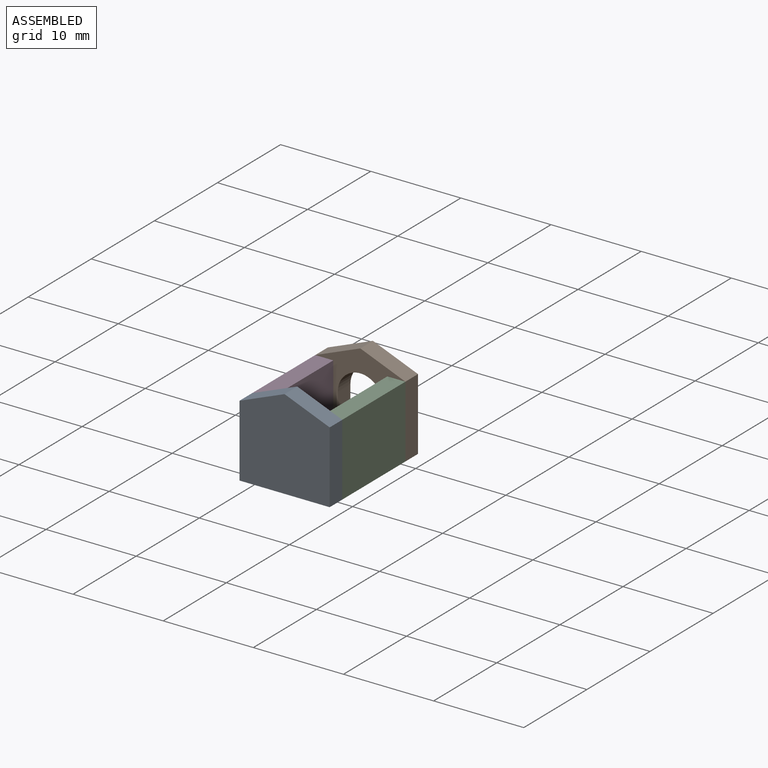
[diagram: assembled view]
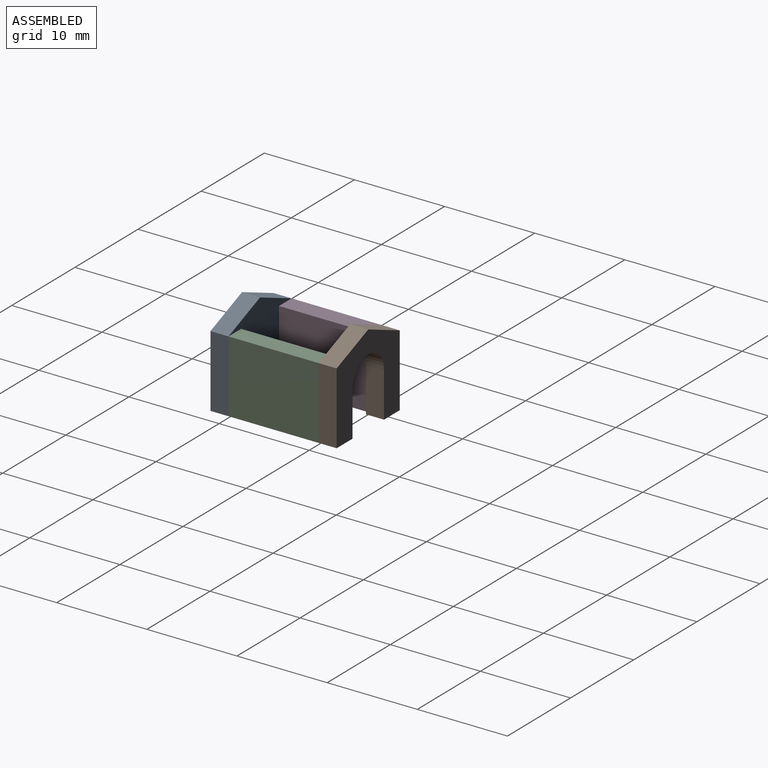
[diagram: assembled view, second angle]
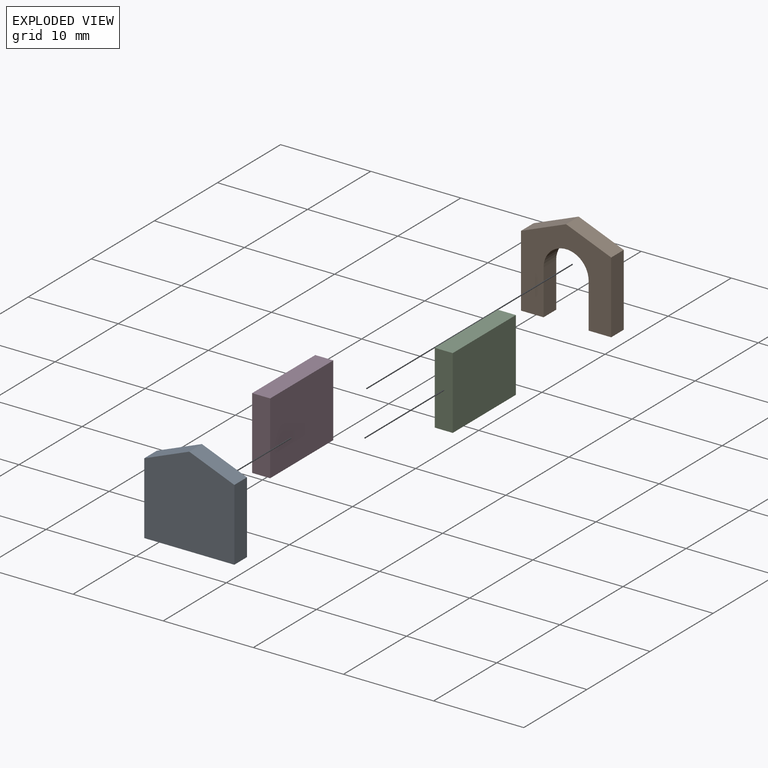
[diagram: exploded view]
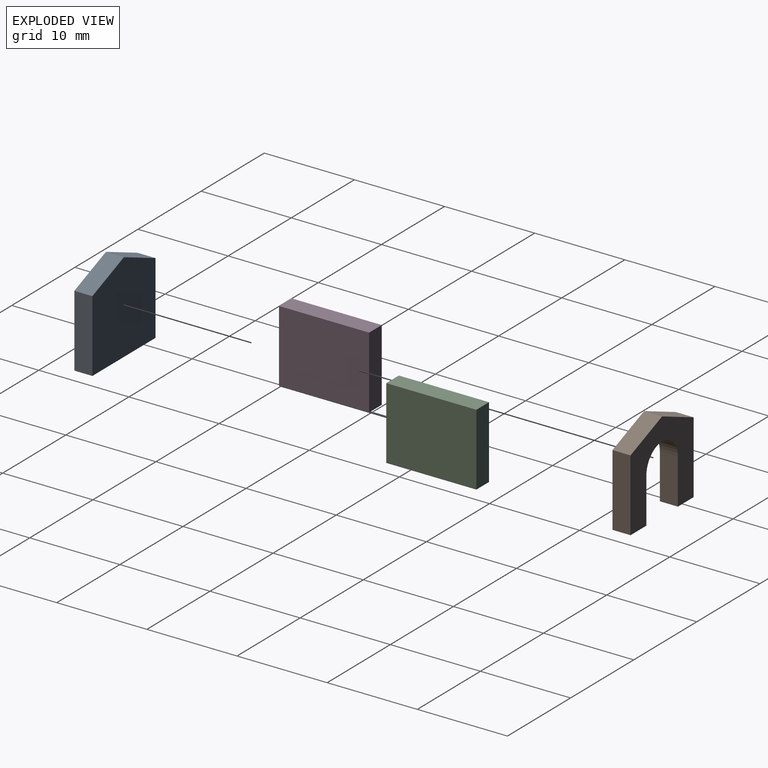
[diagram: exploded view, second angle]
ASSEMBLY  parts=4 mates=3
PART A: 7 faces, bbox 10x2x10 mm
  f0: plane 8x2mm, normal (-1,0,0), area 16mm2, adj f1,f4,f5,f6
  f1: plane 10x2mm, normal (0,0,-1), area 20mm2, adj f0,f2,f5,f6
  f2: plane 8x2mm, normal (1,0,0), area 16mm2, adj f1,f3,f5,f6
  f3: plane 5x2mm, normal (0.37,0,0.93), area 10.8mm2, adj f2,f4,f5,f6
  f4: plane 5x2mm, normal (-0.37,0,0.93), area 10.8mm2, adj f0,f3,f5,f6
  f5: plane 10x10mm, normal (0,-1,0), area 90mm2, adj f0,f1,f2,f3,f4
  f6: plane 10x10mm, normal (0,1,0), area 90mm2, adj f0,f1,f2,f3,f4
PART B: 11 faces, bbox 10x2x10 mm
  f0: plane 2.5x2mm, normal (0,0,-1), area 5mm2, adj f1,f2,f5,f8
  f1: plane 10x10mm, normal (0,-1,0), area 55.2mm2, adj f0,f3,f4,f5,f6,f7,f8,f9
  f2: plane 10x10mm, normal (0,1,0), area 55.2mm2, adj f0,f3,f4,f5,f6,f7,f8,f9
  f3: plane 8x2mm, normal (-1,0,0), area 16mm2, adj f1,f2,f4,f7
  f4: plane 2.5x2mm, normal (0,0,-1), area 5mm2, adj f1,f2,f3,f10
  f5: plane 8x2mm, normal (1,0,0), area 16mm2, adj f0,f1,f2,f6
  f6: plane 5x2mm, normal (0.37,0,0.93), area 10.8mm2, adj f1,f2,f5,f7
  f7: plane 5x2mm, normal (-0.37,0,0.93), area 10.8mm2, adj f1,f2,f3,f6
  f8: plane 5x2mm, normal (-1,0,0), area 10mm2, adj f0,f1,f2,f9
  f9: cylinder r=2.5mm len=5mm, axis (0,-1,0), area 15.7mm2, adj f1,f2,f8,f10
  f10: plane 5x2mm, normal (1,0,0), area 10mm2, adj f1,f2,f4,f9
PART C: 6 faces, bbox 2x10x8 mm
  f0: plane 8x2mm, normal (0,1,0), area 16mm2, adj f1,f3,f4,f5
  f1: plane 10x2mm, normal (0,0,1), area 20mm2, adj f0,f2,f4,f5
  f2: plane 8x2mm, normal (0,-1,0), area 16mm2, adj f1,f3,f4,f5
  f3: plane 10x2mm, normal (0,0,-1), area 20mm2, adj f0,f2,f4,f5
  f4: plane 10x8mm, normal (1,0,0), area 80mm2, adj f0,f1,f2,f3
  f5: plane 10x8mm, normal (-1,0,0), area 80mm2, adj f0,f1,f2,f3
PART D: same geometry as C
PLACE A t=(-1.35,-9.83,1.73)mm fixed
PLACE B rot(axis=(0,0,1),0deg) t=(1.66,2.17,10.15)mm
PLACE C t=(-33.26,6.91,-2.99)mm
PLACE D t=(-41.26,6.91,-2.99)mm
MATE fastened B.f1 <-> C.f0  axis (0,-1,0) through (-31.26,0.17,10.15)mm
MATE fastened D.f2 <-> A.f6  axis (0,-1,0) through (-41.26,-9.83,10.15)mm
MATE fastened C.f2 <-> A.f6  axis (0,-1,0) through (-31.26,-9.83,10.15)mm
